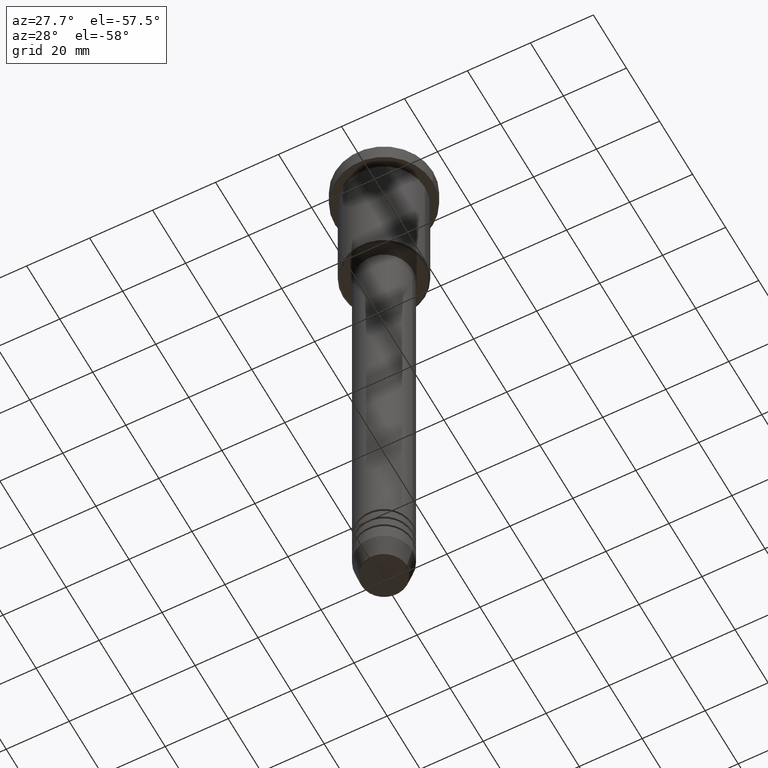
[diagram: clean part render]
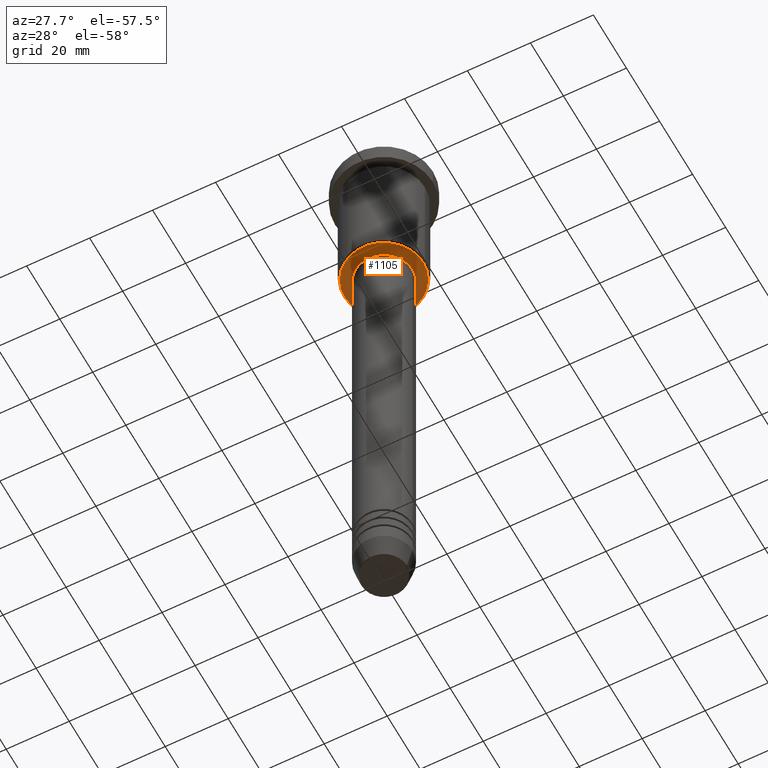
[diagram: same view with one face highlighted and labeled with its STEP entity id]
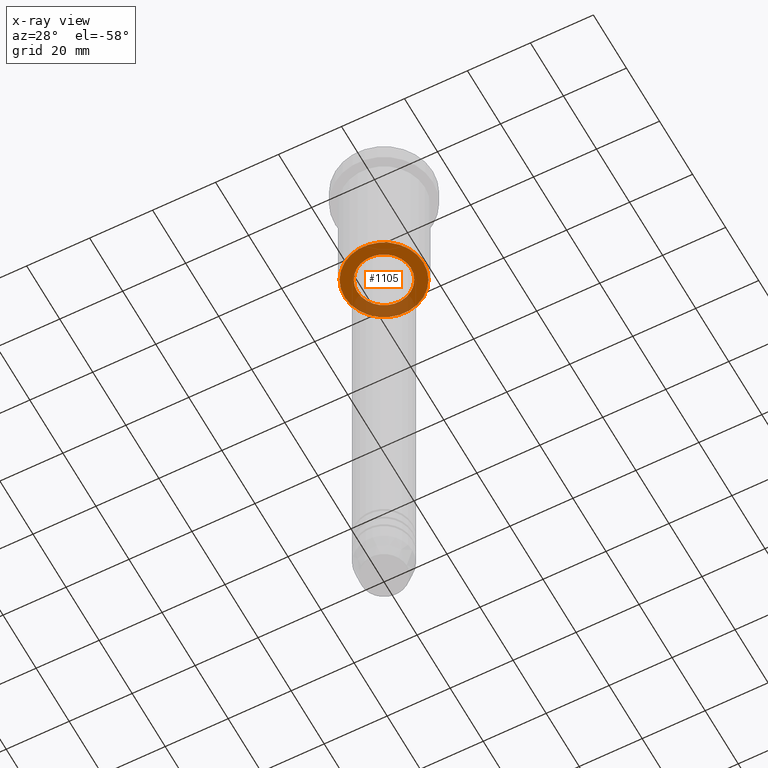
[diagram: x-ray of the same camera — body ghosted, the highlighted face saturated]
A machine part, auxiliary view. The second image highlights one B-rep face of the part: STEP entity #1105.
The next image is the same camera in x-ray: the body ghosted, the highlighted face saturated — about 27% of this face is hidden behind the body in this view.
In plain terms, the highlighted planar face has unit normal (0, 0, -1).
Its self-contained STEP definition (entity closure, byte-faithful):
#44 = CARTESIAN_POINT ( 'NONE',  ( -12.50000000000003908, 1.561424668912877675E-15, -46.00000000000001421 ) ) ;
#109 = VERTEX_POINT ( 'NONE', #1134 ) ;
#140 = CIRCLE ( 'NONE', #956, 8.500000000000000000 ) ;
#151 = FACE_BOUND ( 'NONE', #999, .T. ) ;
#187 = CARTESIAN_POINT ( 'NONE',  ( 0.000000000000000000, 0.000000000000000000, -46.00000000000002132 ) ) ;
#215 = DIRECTION ( 'NONE',  ( -0.000000000000000000, -0.000000000000000000, 1.000000000000000000 ) ) ;
#230 = CARTESIAN_POINT ( 'NONE',  ( 0.000000000000000000, 0.000000000000000000, -46.00000000000001421 ) ) ;
#242 = DIRECTION ( 'NONE',  ( 0.000000000000000000, 0.000000000000000000, -1.000000000000000000 ) ) ;
#256 = CARTESIAN_POINT ( 'NONE',  ( 0.000000000000000000, 0.000000000000000000, -46.00000000000001421 ) ) ;
#265 = ORIENTED_EDGE ( 'NONE', *, *, #1066, .T. ) ;
#268 = CARTESIAN_POINT ( 'NONE',  ( -8.500000000000000000, 1.040949779275250140E-15, -46.00000000000002132 ) ) ;
#355 = EDGE_LOOP ( 'NONE', ( #959, #265 ) ) ;
#376 = DIRECTION ( 'NONE',  ( -0.000000000000000000, -0.000000000000000000, 1.000000000000000000 ) ) ;
#438 = CIRCLE ( 'NONE', #1113, 12.50000000000003908 ) ;
#473 = VERTEX_POINT ( 'NONE', #1037 ) ;
#499 = ORIENTED_EDGE ( 'NONE', *, *, #778, .T. ) ;
#505 = DIRECTION ( 'NONE',  ( 0.000000000000000000, 0.000000000000000000, -1.000000000000000000 ) ) ;
#506 = EDGE_CURVE ( 'NONE', #473, #644, #844, .T. ) ;
#511 = DIRECTION ( 'NONE',  ( -1.000000000000000000, 0.000000000000000000, -0.000000000000000000 ) ) ;
#513 = DIRECTION ( 'NONE',  ( -1.000000000000000000, 0.000000000000000000, 0.000000000000000000 ) ) ;
#579 = AXIS2_PLACEMENT_3D ( 'NONE', #1058, #505, #511 ) ;
#584 = DIRECTION ( 'NONE',  ( 1.000000000000000000, 0.000000000000000000, 0.000000000000000000 ) ) ;
#644 = VERTEX_POINT ( 'NONE', #268 ) ;
#694 = DIRECTION ( 'NONE',  ( -1.000000000000000000, 0.000000000000000000, 0.000000000000000000 ) ) ;
#713 = ORIENTED_EDGE ( 'NONE', *, *, #506, .T. ) ;
#726 = DIRECTION ( 'NONE',  ( 1.000000000000000000, 0.000000000000000000, 0.000000000000000000 ) ) ;
#750 = CARTESIAN_POINT ( 'NONE',  ( 0.000000000000000000, 0.000000000000000000, -46.00000000000002132 ) ) ;
#768 = CIRCLE ( 'NONE', #845, 12.50000000000003908 ) ;
#778 = EDGE_CURVE ( 'NONE', #644, #473, #140, .T. ) ;
#844 = CIRCLE ( 'NONE', #953, 8.500000000000000000 ) ;
#845 = AXIS2_PLACEMENT_3D ( 'NONE', #256, #1072, #513 ) ;
#953 = AXIS2_PLACEMENT_3D ( 'NONE', #750, #215, #584 ) ;
#956 = AXIS2_PLACEMENT_3D ( 'NONE', #187, #376, #726 ) ;
#959 = ORIENTED_EDGE ( 'NONE', *, *, #1169, .T. ) ;
#963 = FACE_OUTER_BOUND ( 'NONE', #355, .T. ) ;
#999 = EDGE_LOOP ( 'NONE', ( #713, #499 ) ) ;
#1013 = VERTEX_POINT ( 'NONE', #44 ) ;
#1037 = CARTESIAN_POINT ( 'NONE',  ( 8.500000000000000000, 0.000000000000000000, -46.00000000000002132 ) ) ;
#1058 = CARTESIAN_POINT ( 'NONE',  ( 0.000000000000000000, 13.00000000000000000, -46.00000000000001421 ) ) ;
#1066 = EDGE_CURVE ( 'NONE', #1013, #109, #438, .T. ) ;
#1072 = DIRECTION ( 'NONE',  ( 0.000000000000000000, 0.000000000000000000, -1.000000000000000000 ) ) ;
#1105 = ADVANCED_FACE ( 'NONE', ( #963, #151 ), #1150, .T. ) ;
#1113 = AXIS2_PLACEMENT_3D ( 'NONE', #230, #242, #694 ) ;
#1134 = CARTESIAN_POINT ( 'NONE',  ( 12.50000000000003908, 0.000000000000000000, -46.00000000000001421 ) ) ;
#1150 = PLANE ( 'NONE',  #579 ) ;
#1169 = EDGE_CURVE ( 'NONE', #109, #1013, #768, .T. ) ;